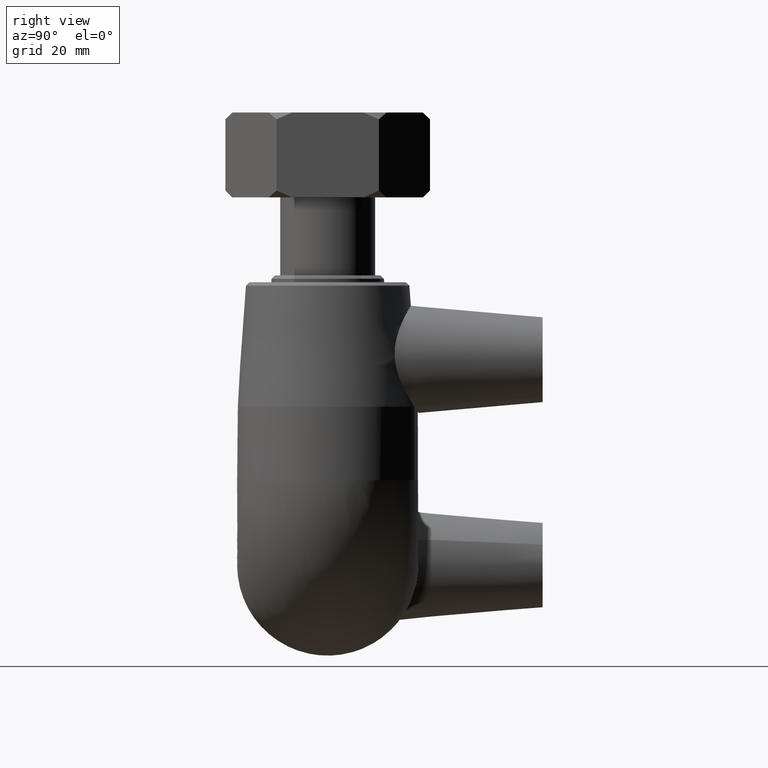
[diagram: clean part render]
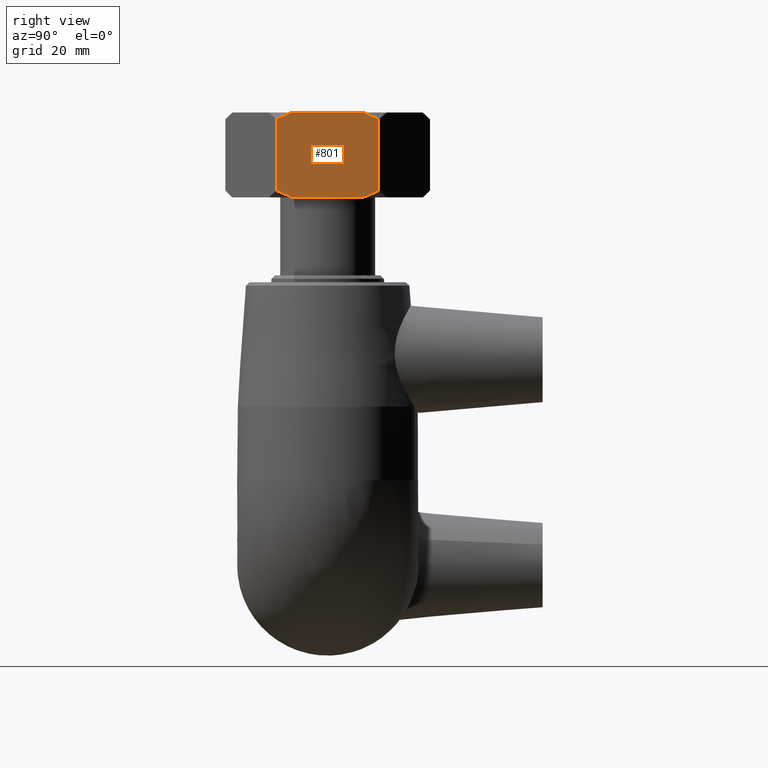
[diagram: same view with one face highlighted and labeled with its STEP entity id]
A machine part, right view. The second image highlights one B-rep face of the part: STEP entity #801.
In plain terms, the highlighted planar face has unit normal (1, 0, -0).
Its self-contained STEP definition (entity closure, byte-faithful):
#26=LINE('',#1266,#44);
#36=LINE('',#1343,#54);
#37=LINE('',#1349,#55);
#38=LINE('',#1354,#56);
#44=VECTOR('',#997,12.5883);
#54=VECTOR('',#1015,12.5894436037697);
#55=VECTOR('',#1016,12.5883);
#56=VECTOR('',#1017,12.5894436037698);
#75=(
BOUNDED_CURVE()
B_SPLINE_CURVE(2,(#1335,#1336,#1337),.UNSPECIFIED.,.F.,.F.)
B_SPLINE_CURVE_WITH_KNOTS((3,3),(0.,0.300305349106752),.UNSPECIFIED.)
CURVE()
GEOMETRIC_REPRESENTATION_ITEM()
RATIONAL_B_SPLINE_CURVE((1.,1.00310458904713,1.))
REPRESENTATION_ITEM('')
);
#76=(
BOUNDED_CURVE()
B_SPLINE_CURVE(2,(#1339,#1340,#1341),.UNSPECIFIED.,.F.,.F.)
B_SPLINE_CURVE_WITH_KNOTS((3,3),(0.,0.300305349106753),.UNSPECIFIED.)
CURVE()
GEOMETRIC_REPRESENTATION_ITEM()
RATIONAL_B_SPLINE_CURVE((1.,1.00310458904736,1.))
REPRESENTATION_ITEM('')
);
#77=(
BOUNDED_CURVE()
B_SPLINE_CURVE(2,(#1345,#1346,#1347),.UNSPECIFIED.,.F.,.F.)
B_SPLINE_CURVE_WITH_KNOTS((3,3),(0.,0.300305349106753),.UNSPECIFIED.)
CURVE()
GEOMETRIC_REPRESENTATION_ITEM()
RATIONAL_B_SPLINE_CURVE((1.,1.00310458904731,1.))
REPRESENTATION_ITEM('')
);
#78=(
BOUNDED_CURVE()
B_SPLINE_CURVE(2,(#1351,#1352,#1353),.UNSPECIFIED.,.F.,.F.)
B_SPLINE_CURVE_WITH_KNOTS((3,3),(0.,0.300305349106752),.UNSPECIFIED.)
CURVE()
GEOMETRIC_REPRESENTATION_ITEM()
RATIONAL_B_SPLINE_CURVE((1.,1.00310458904733,1.))
REPRESENTATION_ITEM('')
);
#103=PLANE('',#871);
#168=FACE_OUTER_BOUND('',#234,.T.);
#234=EDGE_LOOP('',(#602,#603,#604,#605,#606,#607,#608,#609));
#385=VERTEX_POINT('',#1244);
#391=VERTEX_POINT('',#1262);
#410=VERTEX_POINT('',#1334);
#411=VERTEX_POINT('',#1338);
#412=VERTEX_POINT('',#1342);
#413=VERTEX_POINT('',#1344);
#414=VERTEX_POINT('',#1348);
#415=VERTEX_POINT('',#1350);
#471=EDGE_CURVE('',#385,#391,#26,.T.);
#493=EDGE_CURVE('',#385,#410,#75,.T.);
#494=EDGE_CURVE('',#411,#391,#76,.T.);
#495=EDGE_CURVE('',#412,#411,#36,.T.);
#496=EDGE_CURVE('',#413,#412,#77,.T.);
#497=EDGE_CURVE('',#414,#413,#37,.T.);
#498=EDGE_CURVE('',#415,#414,#78,.T.);
#499=EDGE_CURVE('',#410,#415,#38,.T.);
#602=ORIENTED_EDGE('',*,*,#493,.F.);
#603=ORIENTED_EDGE('',*,*,#471,.T.);
#604=ORIENTED_EDGE('',*,*,#494,.F.);
#605=ORIENTED_EDGE('',*,*,#495,.F.);
#606=ORIENTED_EDGE('',*,*,#496,.F.);
#607=ORIENTED_EDGE('',*,*,#497,.F.);
#608=ORIENTED_EDGE('',*,*,#498,.F.);
#609=ORIENTED_EDGE('',*,*,#499,.F.);
#801=ADVANCED_FACE('',(#168),#103,.T.);
#871=AXIS2_PLACEMENT_3D('',#1333,#1013,#1014);
#997=DIRECTION('',(-2.66453525910037E-16,0.,-1.));
#1013=DIRECTION('center_axis',(1.,1.22759660502291E-15,-2.66453525910037E-16));
#1014=DIRECTION('ref_axis',(1.24344978758018E-15,-1.,0.));
#1015=DIRECTION('',(1.22759660502291E-15,-1.,-3.27097443803546E-31));
#1016=DIRECTION('',(-2.66453525910037E-16,0.,-1.));
#1017=DIRECTION('',(-1.22759660502291E-15,1.,3.27097443803546E-31));
#1244=CARTESIAN_POINT('',(15.664450997302,-9.04387499999998,78.79415));
#1262=CARTESIAN_POINT('',(15.664450997302,-9.04387499999998,66.20585));
#1266=CARTESIAN_POINT('',(15.664450997302,-9.04387499999998,72.5));
#1333=CARTESIAN_POINT('Origin',(15.664450997302,9.04387500000002,80.));
#1334=CARTESIAN_POINT('',(15.664450997302,-6.29472180188487,80.));
#1335=CARTESIAN_POINT('Ctrl Pts',(15.664450997302,-9.04387499999998,78.79415));
#1336=CARTESIAN_POINT('Ctrl Pts',(15.664450997302,-7.62189920787142,79.5051378960643));
#1337=CARTESIAN_POINT('Ctrl Pts',(15.664450997302,-6.29472180188487,80.));
#1338=CARTESIAN_POINT('',(15.664450997302,-6.29472180188485,65.));
#1339=CARTESIAN_POINT('Ctrl Pts',(15.664450997302,-6.29472180188485,65.));
#1340=CARTESIAN_POINT('Ctrl Pts',(15.664450997302,-7.62189920787147,65.4948621039358));
#1341=CARTESIAN_POINT('Ctrl Pts',(15.664450997302,-9.04387499999998,66.20585));
#1342=CARTESIAN_POINT('',(15.664450997302,6.29472180188489,65.));
#1343=CARTESIAN_POINT('',(15.664450997302,4.52193750000002,65.));
#1344=CARTESIAN_POINT('',(15.664450997302,9.04387500000002,66.20585));
#1345=CARTESIAN_POINT('Ctrl Pts',(15.664450997302,9.04387500000002,66.20585));
#1346=CARTESIAN_POINT('Ctrl Pts',(15.664450997302,7.62189920787152,65.4948621039358));
#1347=CARTESIAN_POINT('Ctrl Pts',(15.664450997302,6.29472180188489,65.));
#1348=CARTESIAN_POINT('',(15.664450997302,9.04387500000002,78.79415));
#1349=CARTESIAN_POINT('',(15.664450997302,9.04387500000002,72.5));
#1350=CARTESIAN_POINT('',(15.664450997302,6.29472180188491,80.));
#1351=CARTESIAN_POINT('Ctrl Pts',(15.664450997302,6.29472180188491,80.));
#1352=CARTESIAN_POINT('Ctrl Pts',(15.664450997302,7.62189920787147,79.5051378960643));
#1353=CARTESIAN_POINT('Ctrl Pts',(15.664450997302,9.04387500000002,78.79415));
#1354=CARTESIAN_POINT('',(15.664450997302,4.52193750000003,80.));